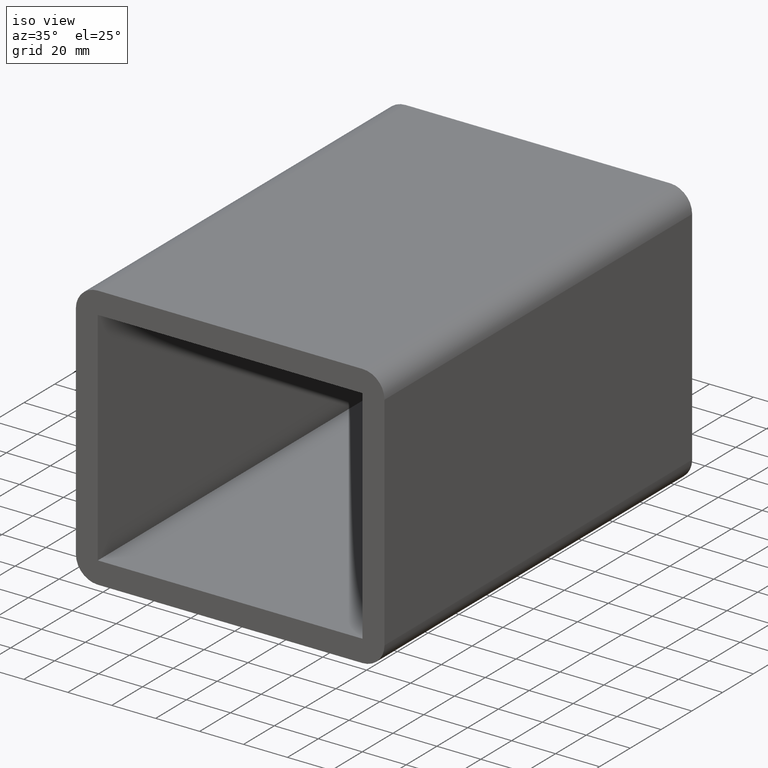
[diagram: clean part render]
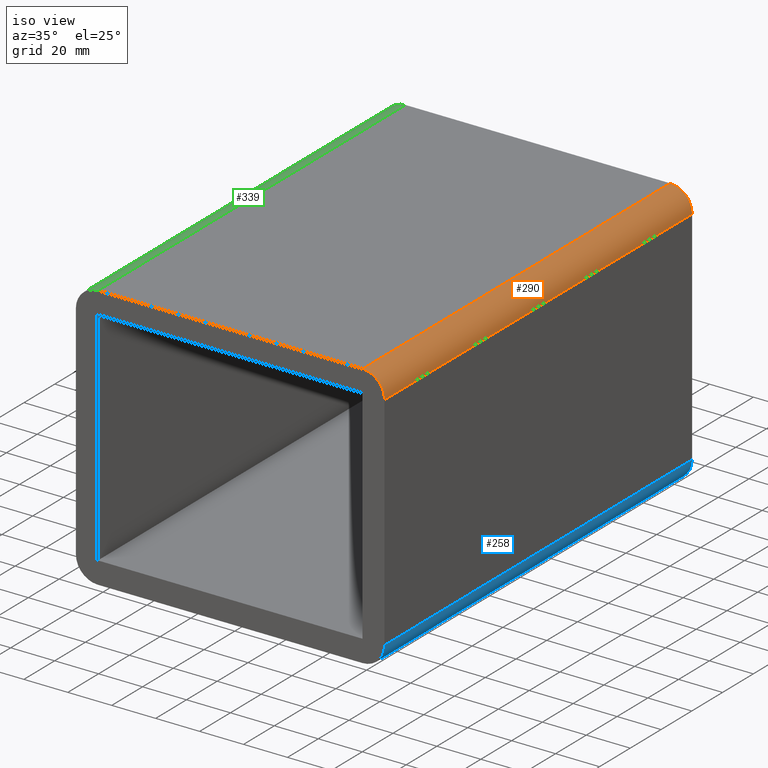
[diagram: same view with three faces highlighted in distinct colors, each labeled with its STEP entity id]
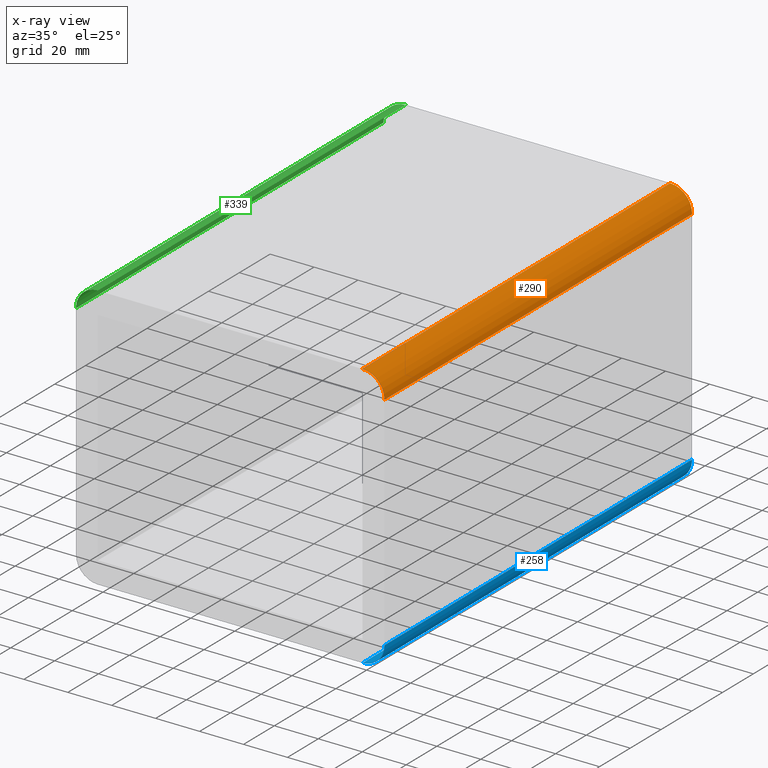
[diagram: x-ray of the same camera — body ghosted, the three highlighted faces saturated]
A machine part, iso view with three faces highlighted in distinct colors.
The next image is the same camera in x-ray (body ghosted, the three faces saturated) — at least one of them is partly hidden behind the body in this view.
Their STEP definitions:

[orange] entity #290 — the highlighted cylindrical surface (edge-blend (fillet) strip) has radius 10 mm, axis along (0, -1, 0).
#133=CARTESIAN_POINT('',(70.25,-3.0,50.500000000000007));
#134=VERTEX_POINT('',#133);
#141=CARTESIAN_POINT('',(60.249999999999993,-3.0,60.500000000000007));
#142=VERTEX_POINT('',#141);
#143=CARTESIAN_POINT('',(60.249999999999993,-3.0,50.500000000000007));
#144=DIRECTION('',(0.0,1.0,0.0));
#145=DIRECTION('',(0.707106781186547,0.0,0.707106781186547));
#146=AXIS2_PLACEMENT_3D('',#143,#144,#145);
#147=CIRCLE('',#146,9.999999999999998);
#148=EDGE_CURVE('',#142,#134,#147,.T.);
#259=CARTESIAN_POINT('',(60.249999999999993,0.0,50.500000000000007));
#260=DIRECTION('',(0.0,-1.0,0.0));
#261=DIRECTION('',(0.707106781186547,0.0,0.707106781186547));
#262=AXIS2_PLACEMENT_3D('',#259,#260,#261);
#263=CYLINDRICAL_SURFACE('',#262,10.0);
#264=ORIENTED_EDGE('',*,*,#148,.T.);
#265=CARTESIAN_POINT('',(70.25,197.0,50.500000000000007));
#266=VERTEX_POINT('',#265);
#267=CARTESIAN_POINT('',(70.25,-3.0,50.500000000000007));
#268=DIRECTION('',(0.0,1.0,0.0));
#269=VECTOR('',#268,200.0);
#270=LINE('',#267,#269);
#271=EDGE_CURVE('',#134,#266,#270,.T.);
#272=ORIENTED_EDGE('',*,*,#271,.T.);
#273=CARTESIAN_POINT('',(60.249999999999993,197.0,60.500000000000007));
#274=VERTEX_POINT('',#273);
#275=CARTESIAN_POINT('',(60.249999999999993,197.0,50.500000000000007));
#276=DIRECTION('',(0.0,-1.0,0.0));
#277=DIRECTION('',(0.707106781186547,0.0,0.707106781186547));
#278=AXIS2_PLACEMENT_3D('',#275,#276,#277);
#279=CIRCLE('',#278,9.999999999999998);
#280=EDGE_CURVE('',#266,#274,#279,.T.);
#281=ORIENTED_EDGE('',*,*,#280,.T.);
#282=CARTESIAN_POINT('',(60.249999999999993,197.0,60.500000000000007));
#283=DIRECTION('',(0.0,-1.0,0.0));
#284=VECTOR('',#283,200.0);
#285=LINE('',#282,#284);
#286=EDGE_CURVE('',#274,#142,#285,.T.);
#287=ORIENTED_EDGE('',*,*,#286,.T.);
#288=EDGE_LOOP('',(#264,#272,#281,#287));
#289=FACE_OUTER_BOUND('',#288,.T.);
#290=ADVANCED_FACE('',(#289),#263,.T.);

[blue] entity #258 — the highlighted cylindrical surface (edge-blend (fillet) strip) has radius 10 mm, axis along (0, 1, 0).
#116=CARTESIAN_POINT('',(60.249999999999993,-3.0,-60.500000000000007));
#117=VERTEX_POINT('',#116);
#124=CARTESIAN_POINT('',(70.25,-3.0,-50.500000000000007));
#125=VERTEX_POINT('',#124);
#126=CARTESIAN_POINT('',(60.249999999999993,-3.0,-50.500000000000007));
#127=DIRECTION('',(0.0,1.0,0.0));
#128=DIRECTION('',(0.707106781186547,0.0,-0.707106781186547));
#129=AXIS2_PLACEMENT_3D('',#126,#127,#128);
#130=CIRCLE('',#129,9.999999999999998);
#131=EDGE_CURVE('',#125,#117,#130,.T.);
#216=CARTESIAN_POINT('',(60.249999999999993,197.0,-60.500000000000007));
#217=VERTEX_POINT('',#216);
#224=CARTESIAN_POINT('',(60.249999999999993,-3.0,-60.500000000000007));
#225=DIRECTION('',(0.0,1.0,0.0));
#226=VECTOR('',#225,200.0);
#227=LINE('',#224,#226);
#228=EDGE_CURVE('',#117,#217,#227,.T.);
#234=CARTESIAN_POINT('',(60.249999999999993,0.0,-50.500000000000007));
#235=DIRECTION('',(0.0,1.0,0.0));
#236=DIRECTION('',(0.707106781186547,0.0,-0.707106781186547));
#237=AXIS2_PLACEMENT_3D('',#234,#235,#236);
#238=CYLINDRICAL_SURFACE('',#237,10.0);
#239=CARTESIAN_POINT('',(70.25,197.0,-50.500000000000007));
#240=VERTEX_POINT('',#239);
#241=CARTESIAN_POINT('',(60.249999999999993,197.0,-50.500000000000007));
#242=DIRECTION('',(0.0,-1.0,0.0));
#243=DIRECTION('',(0.707106781186547,0.0,-0.707106781186547));
#244=AXIS2_PLACEMENT_3D('',#241,#242,#243);
#245=CIRCLE('',#244,9.999999999999998);
#246=EDGE_CURVE('',#217,#240,#245,.T.);
#247=ORIENTED_EDGE('',*,*,#246,.T.);
#248=CARTESIAN_POINT('',(70.25,197.0,-50.500000000000007));
#249=DIRECTION('',(0.0,-1.0,0.0));
#250=VECTOR('',#249,200.0);
#251=LINE('',#248,#250);
#252=EDGE_CURVE('',#240,#125,#251,.T.);
#253=ORIENTED_EDGE('',*,*,#252,.T.);
#254=ORIENTED_EDGE('',*,*,#131,.T.);
#255=ORIENTED_EDGE('',*,*,#228,.T.);
#256=EDGE_LOOP('',(#247,#253,#254,#255));
#257=FACE_OUTER_BOUND('',#256,.T.);
#258=ADVANCED_FACE('',(#257),#238,.T.);

[green] entity #339 — the highlighted cylindrical surface (edge-blend (fillet) strip) has radius 10 mm, axis along (0, 1, 0).
#150=CARTESIAN_POINT('',(-60.250000000000014,-3.0,60.500000000000007));
#151=VERTEX_POINT('',#150);
#158=CARTESIAN_POINT('',(-70.250000000000014,-3.0,50.500000000000007));
#159=VERTEX_POINT('',#158);
#160=CARTESIAN_POINT('',(-60.250000000000014,-3.0,50.500000000000007));
#161=DIRECTION('',(0.0,1.0,0.0));
#162=DIRECTION('',(-0.707106781186547,0.0,0.707106781186547));
#163=AXIS2_PLACEMENT_3D('',#160,#161,#162);
#164=CIRCLE('',#163,9.999999999999998);
#165=EDGE_CURVE('',#159,#151,#164,.T.);
#297=CARTESIAN_POINT('',(-60.250000000000014,197.0,60.500000000000007));
#298=VERTEX_POINT('',#297);
#305=CARTESIAN_POINT('',(-60.250000000000014,-3.0,60.500000000000007));
#306=DIRECTION('',(0.0,1.0,0.0));
#307=VECTOR('',#306,200.0);
#308=LINE('',#305,#307);
#309=EDGE_CURVE('',#151,#298,#308,.T.);
#315=CARTESIAN_POINT('',(-60.250000000000014,0.0,50.500000000000007));
#316=DIRECTION('',(0.0,1.0,0.0));
#317=DIRECTION('',(-0.707106781186547,0.0,0.707106781186547));
#318=AXIS2_PLACEMENT_3D('',#315,#316,#317);
#319=CYLINDRICAL_SURFACE('',#318,10.0);
#320=CARTESIAN_POINT('',(-70.250000000000014,197.0,50.500000000000007));
#321=VERTEX_POINT('',#320);
#322=CARTESIAN_POINT('',(-60.250000000000014,197.0,50.500000000000007));
#323=DIRECTION('',(0.0,-1.0,0.0));
#324=DIRECTION('',(-0.707106781186547,0.0,0.707106781186547));
#325=AXIS2_PLACEMENT_3D('',#322,#323,#324);
#326=CIRCLE('',#325,9.999999999999998);
#327=EDGE_CURVE('',#298,#321,#326,.T.);
#328=ORIENTED_EDGE('',*,*,#327,.T.);
#329=CARTESIAN_POINT('',(-70.250000000000014,197.0,50.500000000000007));
#330=DIRECTION('',(0.0,-1.0,0.0));
#331=VECTOR('',#330,200.0);
#332=LINE('',#329,#331);
#333=EDGE_CURVE('',#321,#159,#332,.T.);
#334=ORIENTED_EDGE('',*,*,#333,.T.);
#335=ORIENTED_EDGE('',*,*,#165,.T.);
#336=ORIENTED_EDGE('',*,*,#309,.T.);
#337=EDGE_LOOP('',(#328,#334,#335,#336));
#338=FACE_OUTER_BOUND('',#337,.T.);
#339=ADVANCED_FACE('',(#338),#319,.T.);